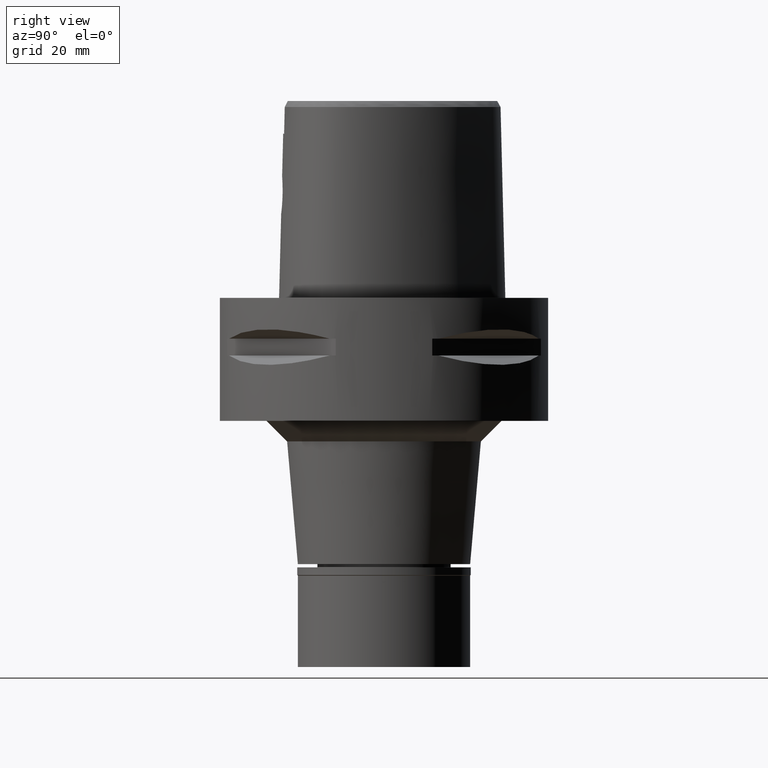
[diagram: clean part render]
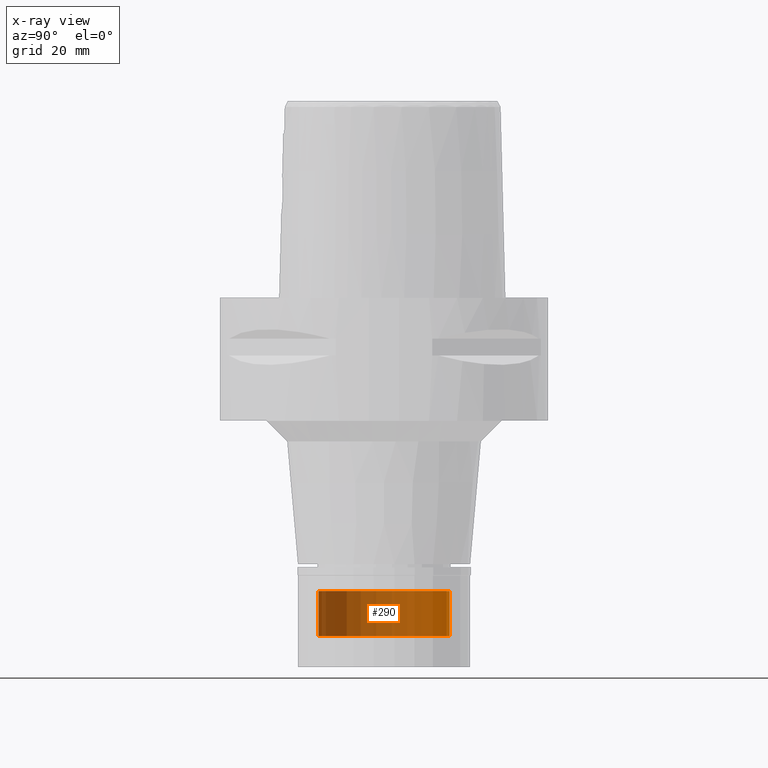
[diagram: x-ray — body ghosted, one internal face saturated and labeled with its STEP entity id]
A machine part, right view, then the same camera in x-ray: the body is ghosted and one INTERNAL B-rep face — a face not visible from any outside direction — is saturated and labeled: STEP entity #290.
In plain terms, the highlighted cylindrical surface (partial cylindrical patch) has radius 16 mm, axis along (0, 0, -1).
Its self-contained STEP definition (entity closure, byte-faithful):
#76 = LINE ( 'NONE', #4798, #3348 ) ;
#103 = AXIS2_PLACEMENT_3D ( 'NONE', #2772, #4188, #1127 ) ;
#272 = AXIS2_PLACEMENT_3D ( 'NONE', #4639, #4539, #4173 ) ;
#290 = ADVANCED_FACE ( 'NONE', ( #3469 ), #4961, .T. ) ;
#302 = EDGE_LOOP ( 'NONE', ( #1071, #1587, #369, #694 ) ) ;
#308 = CARTESIAN_POINT ( 'NONE',  ( 0.0000000000000000000, 16.00000000000000000, -71.50000000000000000 ) ) ;
#369 = ORIENTED_EDGE ( 'NONE', *, *, #1704, .T. ) ;
#694 = ORIENTED_EDGE ( 'NONE', *, *, #855, .T. ) ;
#855 = EDGE_CURVE ( 'NONE', #1630, #1133, #1519, .T. ) ;
#894 = CARTESIAN_POINT ( 'NONE',  ( 0.0000000000000000000, 16.00000000000000000, -71.50000000000000000 ) ) ;
#1005 = CARTESIAN_POINT ( 'NONE',  ( 0.0000000000000000000, -16.00000000000000000, -82.50000000000000000 ) ) ;
#1071 = ORIENTED_EDGE ( 'NONE', *, *, #4683, .T. ) ;
#1127 = DIRECTION ( 'NONE',  ( 0.0000000000000000000, -1.000000000000000000, 0.0000000000000000000 ) ) ;
#1133 = VERTEX_POINT ( 'NONE', #2387 ) ;
#1519 = LINE ( 'NONE', #308, #2253 ) ;
#1587 = ORIENTED_EDGE ( 'NONE', *, *, #3549, .F. ) ;
#1630 = VERTEX_POINT ( 'NONE', #894 ) ;
#1704 = EDGE_CURVE ( 'NONE', #2851, #1630, #1754, .T. ) ;
#1754 = CIRCLE ( 'NONE', #272, 16.00000000000000000 ) ;
#2123 = CARTESIAN_POINT ( 'NONE',  ( 0.0000000000000000000, -16.00000000000000000, -71.50000000000000000 ) ) ;
#2253 = VECTOR ( 'NONE', #4202, 1000.000000000000000 ) ;
#2387 = CARTESIAN_POINT ( 'NONE',  ( 0.0000000000000000000, 16.00000000000000000, -82.50000000000000000 ) ) ;
#2772 = CARTESIAN_POINT ( 'NONE',  ( 0.0000000000000000000, 1.275163479612000028E-14, 4.125000000000000000 ) ) ;
#2851 = VERTEX_POINT ( 'NONE', #2123 ) ;
#3348 = VECTOR ( 'NONE', #4706, 1000.000000000000000 ) ;
#3469 = FACE_OUTER_BOUND ( 'NONE', #302, .T. ) ;
#3549 = EDGE_CURVE ( 'NONE', #2851, #3769, #76, .T. ) ;
#3606 = AXIS2_PLACEMENT_3D ( 'NONE', #4139, #4598, #4934 ) ;
#3769 = VERTEX_POINT ( 'NONE', #1005 ) ;
#4139 = CARTESIAN_POINT ( 'NONE',  ( 0.0000000000000000000, 1.275163479612000028E-14, -82.50000000000000000 ) ) ;
#4173 = DIRECTION ( 'NONE',  ( 0.0000000000000000000, -1.000000000000000000, 0.0000000000000000000 ) ) ;
#4188 = DIRECTION ( 'NONE',  ( 0.0000000000000000000, 0.0000000000000000000, -1.000000000000000000 ) ) ;
#4202 = DIRECTION ( 'NONE',  ( 0.0000000000000000000, 0.0000000000000000000, -1.000000000000000000 ) ) ;
#4539 = DIRECTION ( 'NONE',  ( 0.0000000000000000000, 0.0000000000000000000, -1.000000000000000000 ) ) ;
#4598 = DIRECTION ( 'NONE',  ( 0.0000000000000000000, 0.0000000000000000000, 1.000000000000000000 ) ) ;
#4639 = CARTESIAN_POINT ( 'NONE',  ( 0.0000000000000000000, 1.275163479612000028E-14, -71.50000000000000000 ) ) ;
#4683 = EDGE_CURVE ( 'NONE', #1133, #3769, #4920, .T. ) ;
#4706 = DIRECTION ( 'NONE',  ( 0.0000000000000000000, 0.0000000000000000000, -1.000000000000000000 ) ) ;
#4798 = CARTESIAN_POINT ( 'NONE',  ( 0.0000000000000000000, -16.00000000000000000, -71.50000000000000000 ) ) ;
#4920 = CIRCLE ( 'NONE', #3606, 16.00000000000000000 ) ;
#4934 = DIRECTION ( 'NONE',  ( 0.0000000000000000000, 1.000000000000000000, 0.0000000000000000000 ) ) ;
#4961 = CYLINDRICAL_SURFACE ( 'NONE', #103, 16.00000000000000000 ) ;